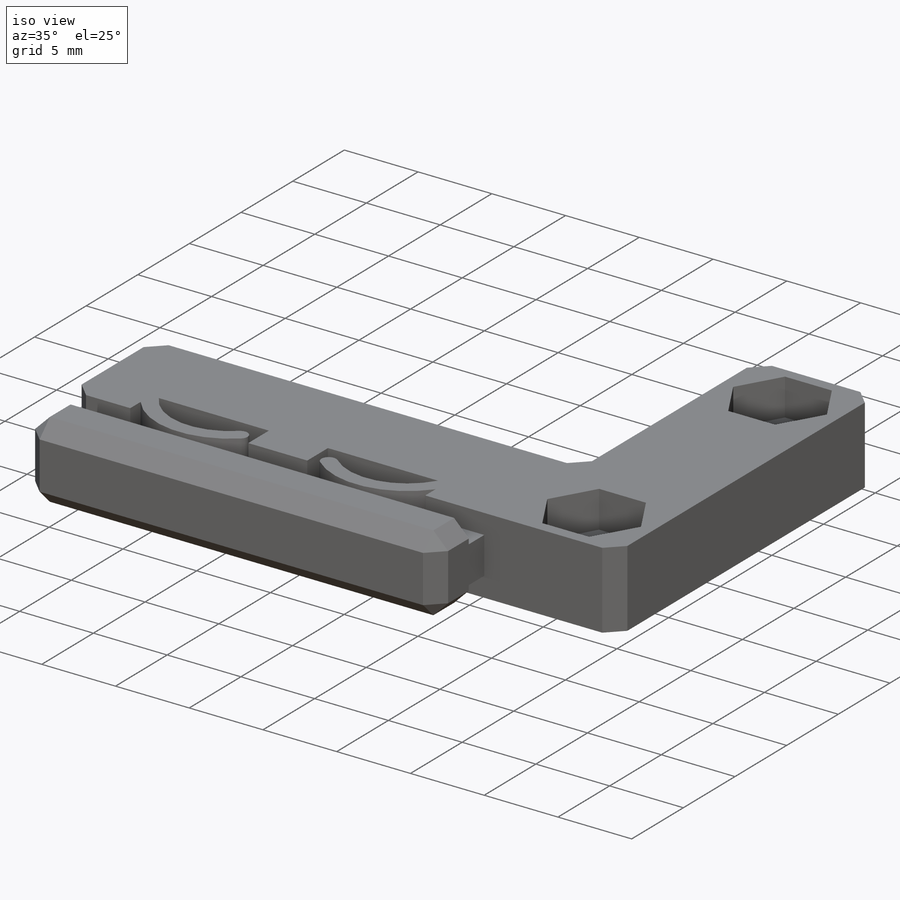
[diagram: iso view]
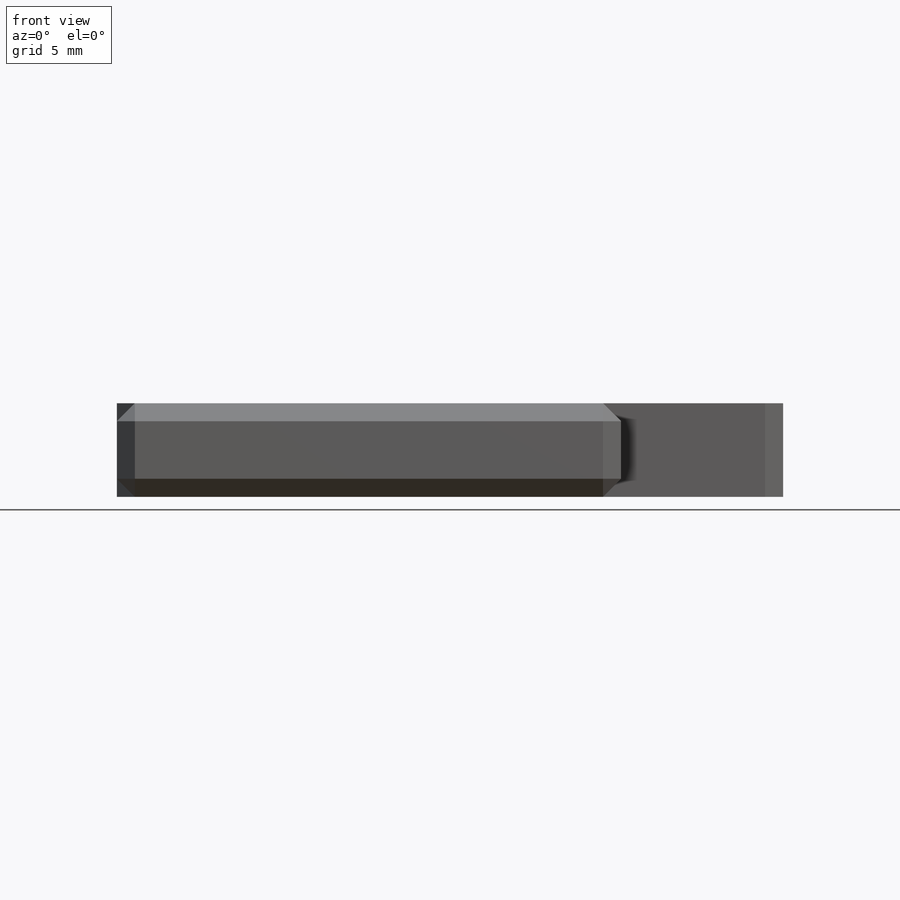
[diagram: front view]
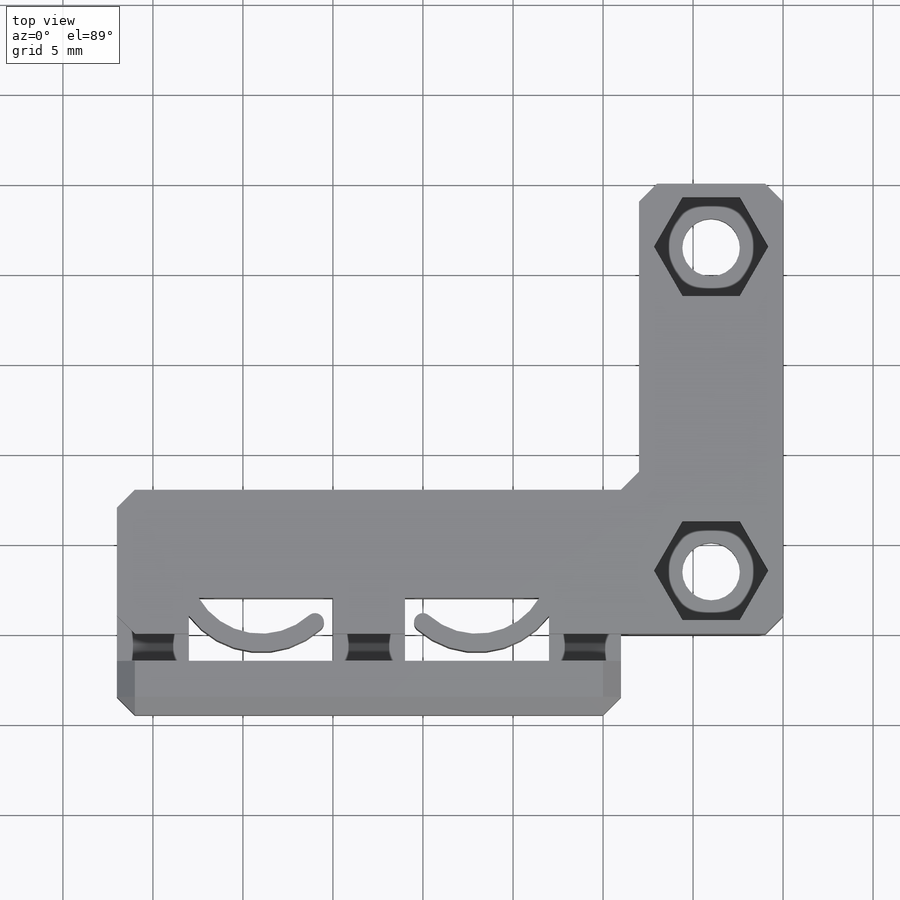
[diagram: top view]
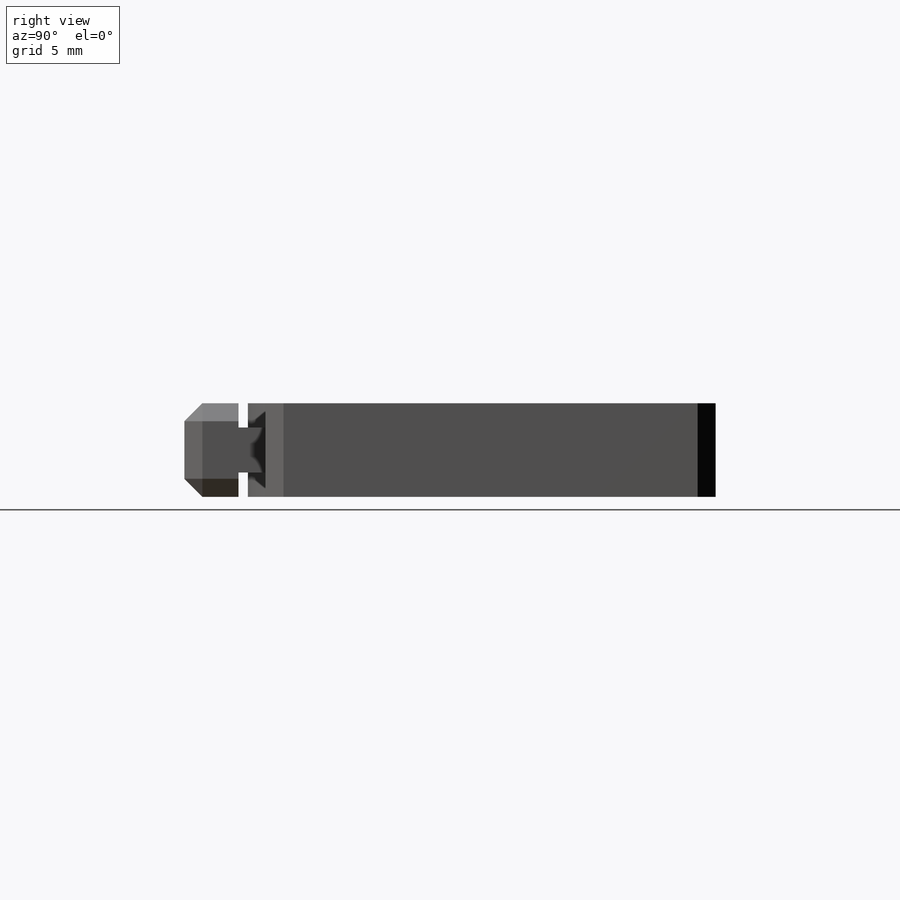
[diagram: right view]
SOLIDWORKS PART (.sldprt)
format: sldprt  version: not decoded by parser v0  size: 309,248 bytes
history: native  units: mm
features: sketch x7, extrude x5, cut_extrude x2, material x1, plane x1, mirror x1, chamfer x1 (+12 scaffold rows collapsed)
feature tree (30):
  scaffold x12  (default folders/planes/origin — collapsed)
  material  "Material <not specified>"
  sketch  "Sketch1"  dims[D1=25.0mm D2=8.0mm D3=8.0mm D4=2.0mm D5=8.0mm D6=8.0mm D7=4.0mm D8=5.0mm D9=4.0mm D10=9.0mm]
  extrude  "Boss-Extrude1"  Depth=5.2mm
  sketch  "Sketch2"  dims[D1=3.0mm D2=1.5mm D3=2.5mm]
  extrude  "Boss-Extrude2"  Depth=4mm
  sketch  "Sketch3"
  extrude  "Boss-Extrude3"  Depth=4mm
  plane  "Plane1"
  sketch  "Sketch4"
  extrude  "Boss-Extrude4"  Depth=8mm
  sketch  "Sketch5"  dims[c1.D1=~2.767779mm c1.D2=~2.767779mm c1.D3=5.0mm c1.D4=0.5mm c2.D1=1.0mm c2.D2=2.0mm c2.D4=0.5mm]
  extrude  "Boss-Extrude5"  Depth=5.2mm
  mirror  "Mirror1"
  sketch  "Sketch6"  dims[D1=3.2mm D2=18.0mm]
  cut_extrude  "Cut-Extrude1"  [1 undecoded]
  sketch  "Sketch7"  dims[D1=5.5mm]
  cut_extrude  "Cut-Extrude2"  Depth=2.5mm
  chamfer  "Chamfer1"  Distance=1mm Angle=45deg
decode coverage: 12 of 16 modeling features carry decoded parameters
note: ~ marks probable driven/reference dimensions
note: 1 parameter value undecoded
note: suppression state not decoded; provenance and decode notes live in map.json
